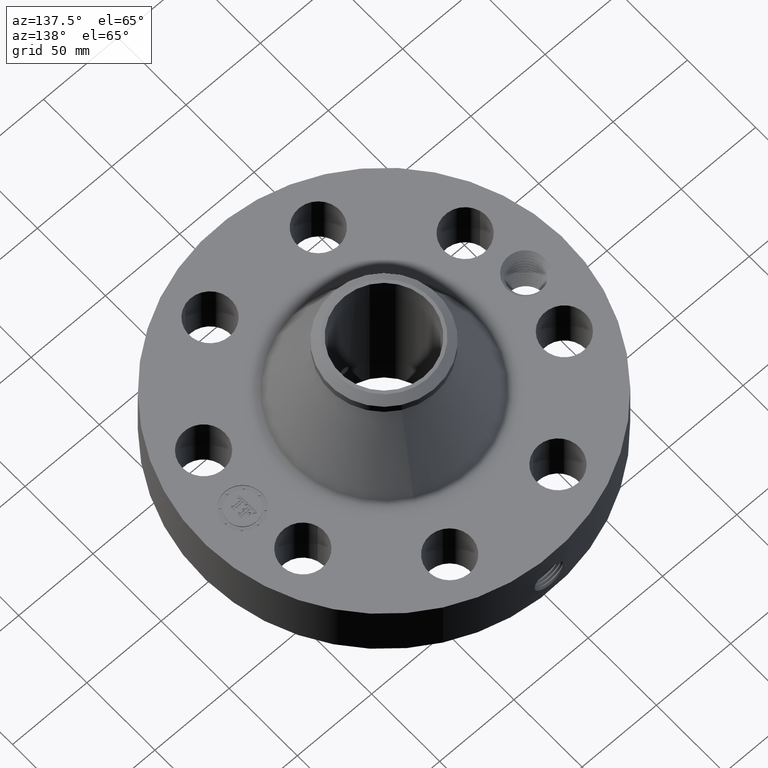
[diagram: clean part render]
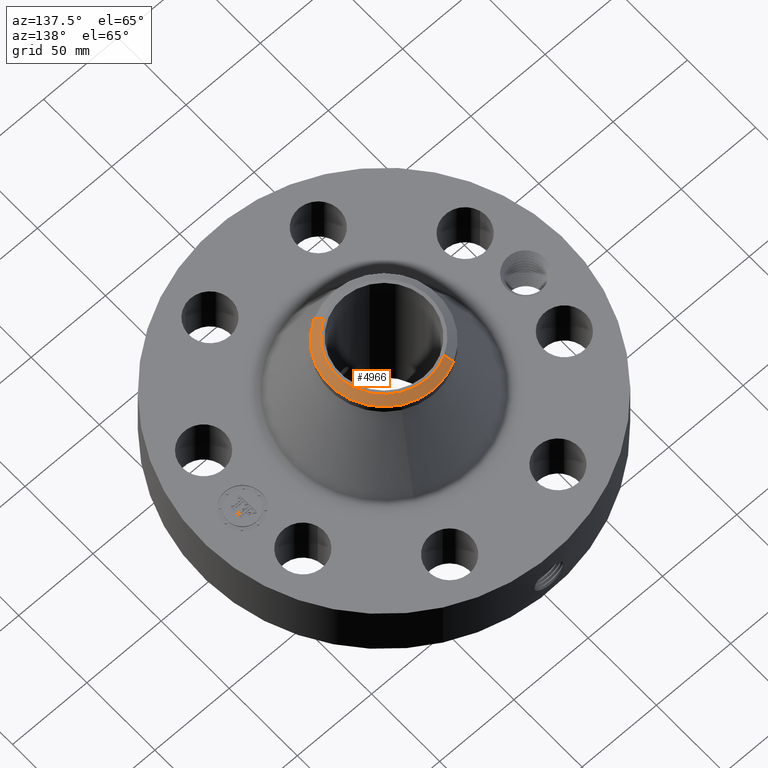
[diagram: same view with one face highlighted and labeled with its STEP entity id]
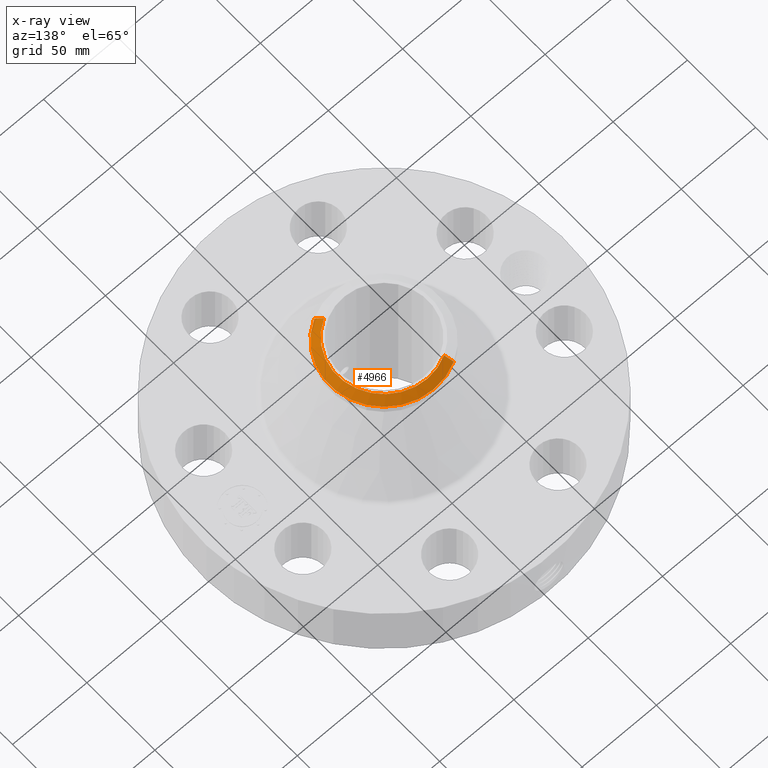
[diagram: x-ray of the same camera — body ghosted, the highlighted face saturated]
A machine part, auxiliary view. The second image highlights one B-rep face of the part: STEP entity #4966.
The next image is the same camera in x-ray: the body ghosted, the highlighted face saturated — about 0% of this face is hidden behind the body in this view.
In plain terms, the highlighted conical surface has half-angle 52.5 deg.
Its self-contained STEP definition (entity closure, byte-faithful):
#3635=AXIS2_PLACEMENT_3D('Circle Axis2P3D',#3633,#3634,$) ;
#3662=AXIS2_PLACEMENT_3D('Circle Axis2P3D',#3660,#3661,$) ;
#4512=AXIS2_PLACEMENT_3D('Circle Axis2P3D',#4510,#4511,$) ;
#4947=AXIS2_PLACEMENT_3D('Cone Axis2P3D',#4944,#4945,#4946) ;
#3630=CARTESIAN_POINT('Vertex',(0.690372775593,1.26371888913,4.21671888174)) ;
#3633=CARTESIAN_POINT('Axis2P3D Location',(0.,0.,4.21671888174)) ;
#3637=CARTESIAN_POINT('Vertex',(0.690372775593,-1.26371888913,4.21671888174)) ;
#3657=CARTESIAN_POINT('Vertex',(-0.690372775593,1.26371888913,4.21671888174)) ;
#3660=CARTESIAN_POINT('Axis2P3D Location',(0.,0.,4.21671888174)) ;
#4510=CARTESIAN_POINT('Axis2P3D Location',(0.,0.,4.37000000002)) ;
#4514=CARTESIAN_POINT('Vertex',(0.594602805501,-1.08841313476,4.37000000002)) ;
#4516=CARTESIAN_POINT('Vertex',(-0.594602805501,1.08841313476,4.37000000002)) ;
#4944=CARTESIAN_POINT('Axis2P3D Location',(0.,0.,4.37000000002)) ;
#4949=CARTESIAN_POINT('Line Origine',(-0.642487790547,1.17606601195,4.29335944088)) ;
#4954=CARTESIAN_POINT('Line Origine',(0.642487790547,-1.17606601195,4.29335944088)) ;
#3634=DIRECTION('Axis2P3D Direction',(0.,0.,-0.0393700787402)) ;
#3661=DIRECTION('Axis2P3D Direction',(0.,0.,-0.0393700787402)) ;
#4511=DIRECTION('Axis2P3D Direction',(0.,0.,-0.0393700787402)) ;
#4945=DIRECTION('Axis2P3D Direction',(-0.,-0.,-0.0393700787402)) ;
#4946=DIRECTION('Axis2P3D XDirection',(0.0188750212049,-0.0345504945626,0.)) ;
#4950=DIRECTION('Vector Direction',(-0.014974561121,0.02741075027,-0.023966985394)) ;
#4955=DIRECTION('Vector Direction',(0.014974561121,-0.02741075027,-0.023966985394)) ;
#4951=VECTOR('Line Direction',#4950,0.0393700787402) ;
#4956=VECTOR('Line Direction',#4955,0.0393700787402) ;
#4960=ORIENTED_EDGE('',*,*,#4953,.F.) ;
#4961=ORIENTED_EDGE('',*,*,#4518,.F.) ;
#4962=ORIENTED_EDGE('',*,*,#4958,.T.) ;
#4963=ORIENTED_EDGE('',*,*,#3639,.T.) ;
#4964=ORIENTED_EDGE('',*,*,#3664,.F.) ;
#4966=ADVANCED_FACE('PartBody',(#4965),#4948,.T.) ;
#3636=CIRCLE('generated circle',#3635,1.44000000001) ;
#3663=CIRCLE('generated circle',#3662,1.44000000001) ;
#4513=CIRCLE('generated circle',#4512,1.24024015748) ;
#4948=CONICAL_SURFACE('Cone',#4947,1.24024015748,0.916297857297) ;
#3639=EDGE_CURVE('',#3638,#3631,#3636,.F.) ;
#3664=EDGE_CURVE('',#3658,#3631,#3663,.T.) ;
#4518=EDGE_CURVE('',#4515,#4517,#4513,.F.) ;
#4953=EDGE_CURVE('',#4517,#3658,#4952,.T.) ;
#4958=EDGE_CURVE('',#4515,#3638,#4957,.T.) ;
#4959=EDGE_LOOP('',(#4960,#4961,#4962,#4963,#4964)) ;
#4965=FACE_OUTER_BOUND('',#4959,.T.) ;
#4952=LINE('Line',#4949,#4951) ;
#4957=LINE('Line',#4954,#4956) ;
#3631=VERTEX_POINT('',#3630) ;
#3638=VERTEX_POINT('',#3637) ;
#3658=VERTEX_POINT('',#3657) ;
#4515=VERTEX_POINT('',#4514) ;
#4517=VERTEX_POINT('',#4516) ;